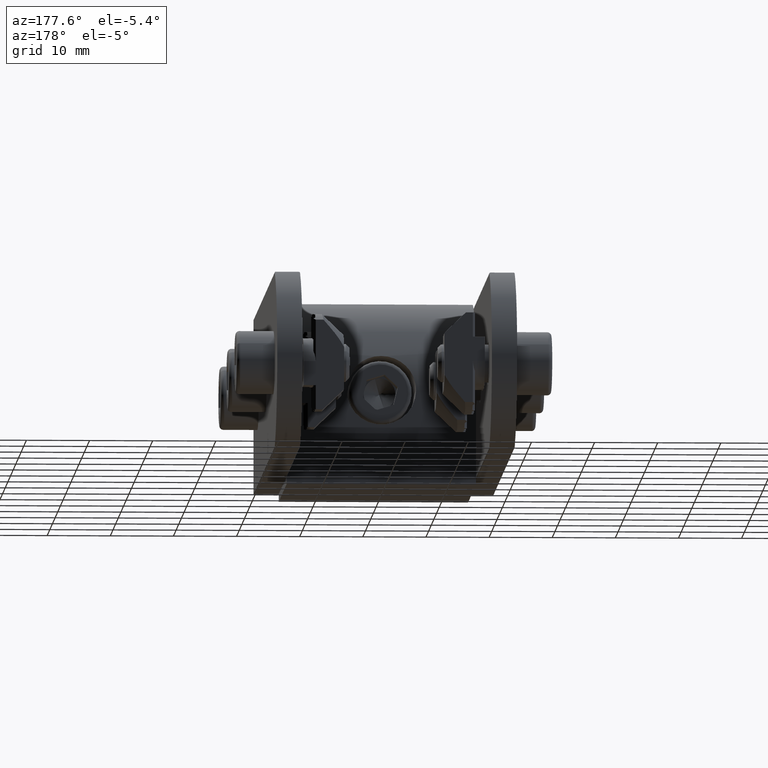
[diagram: clean part render]
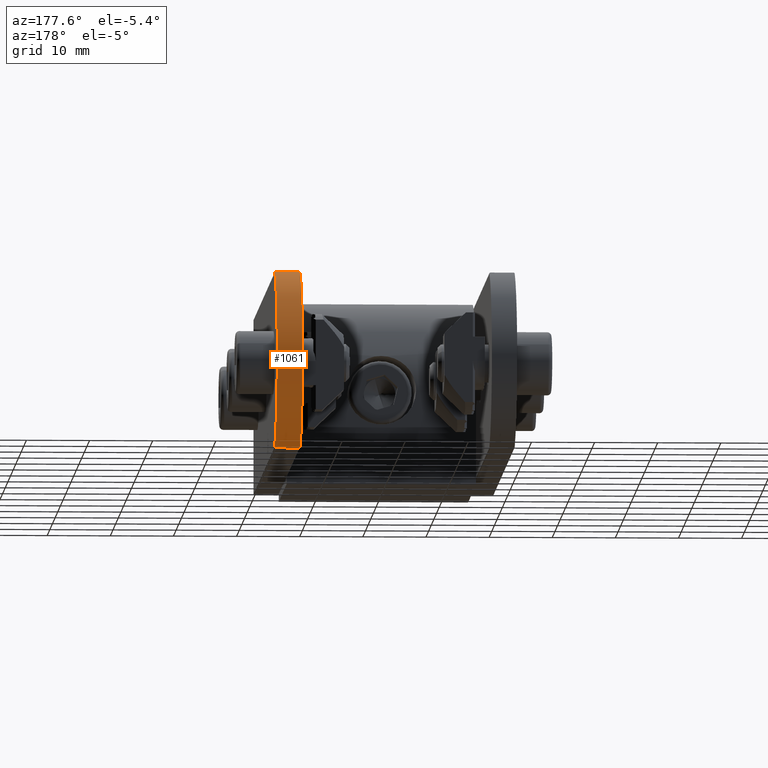
[diagram: same view with one face highlighted and labeled with its STEP entity id]
A machine part, auxiliary view. The second image highlights one B-rep face of the part: STEP entity #1061.
In plain terms, the highlighted cylindrical surface (partial cylindrical patch) has radius 14.8 mm, axis along (-1, 0, -0).
Its self-contained STEP definition (entity closure, byte-faithful):
#22 = CARTESIAN_POINT ( 'NONE',  ( 40.00000000000000711, -14.00000000000001776, 3.799999999999999822 ) ) ;
#95 = ORIENTED_EDGE ( 'NONE', *, *, #3776, .F. ) ;
#105 = B_SPLINE_CURVE_WITH_KNOTS ( 'NONE', 3,
 ( #4828, #2210, #4398, #4335, #3956, #3470, #2239, #3871, #3443, #3047 ),
 .UNSPECIFIED., .F., .F.,
 ( 4, 2, 2, 2, 4 ),
 ( 0.000000000000000000, 8.208523205091546786E-05, 0.0001641704641018309357, 0.0003283409282036424100, 0.0006566818564072671475 ),
 .UNSPECIFIED. ) ;
#136 = CARTESIAN_POINT ( 'NONE',  ( 40.19736532492732550, 13.93086931936776018, 3.952799485552574765 ) ) ;
#157 = CARTESIAN_POINT ( 'NONE',  ( 40.44651398563149769, 13.83928874891829430, -3.335192229813806352E-17 ) ) ;
#190 = ORIENTED_EDGE ( 'NONE', *, *, #496, .T. ) ;
#206 = CARTESIAN_POINT ( 'NONE',  ( 40.05601880040098450, 13.98068339249418557, 0.1120914687767559231 ) ) ;
#237 = CARTESIAN_POINT ( 'NONE',  ( 40.07830587791514887, 13.97292873733607443, 0.09849880051460402353 ) ) ;
#376 = EDGE_CURVE ( 'NONE', #1024, #4433, #105, .T. ) ;
#431 = AXIS2_PLACEMENT_3D ( 'NONE', #3297, #5054, #5207 ) ;
#490 = CIRCLE ( 'NONE', #855, 14.80000000000000782 ) ;
#496 = EDGE_CURVE ( 'NONE', #4433, #2161, #3289, .T. ) ;
#570 = CARTESIAN_POINT ( 'NONE',  ( 40.00000000000002132, 14.00000000000001421, 3.827852753036675271 ) ) ;
#617 = CARTESIAN_POINT ( 'NONE',  ( 40.00000000000002132, 14.00000000000001421, 0.2000000000000000944 ) ) ;
#718 = CARTESIAN_POINT ( 'NONE',  ( 40.54789678284839027, -13.80000000000001670, 0.000000000000000000 ) ) ;
#762 = CARTESIAN_POINT ( 'NONE',  ( 40.00000000000002132, 14.00000000000001421, 3.799999999999999822 ) ) ;
#786 = CARTESIAN_POINT ( 'NONE',  ( 40.54789678284839027, -13.80000000000001670, 4.000000000000000000 ) ) ;
#819 = CARTESIAN_POINT ( 'NONE',  ( 40.07830587791514887, -13.97292873733607799, 3.901501199485398974 ) ) ;
#855 = AXIS2_PLACEMENT_3D ( 'NONE', #3054, #2087, #1280 ) ;
#991 = EDGE_CURVE ( 'NONE', #2728, #1684, #4292, .T. ) ;
#1024 = VERTEX_POINT ( 'NONE', #3781 ) ;
#1061 = ADVANCED_FACE ( 'NONE', ( #3755 ), #2560, .T. ) ;
#1105 = CARTESIAN_POINT ( 'NONE',  ( 40.19766797640946265, 13.93076035739696295, 0.04711413994503050456 ) ) ;
#1116 = DIRECTION ( 'NONE',  ( -0.000000000000000000, -0.000000000000000000, -1.000000000000000000 ) ) ;
#1127 = CARTESIAN_POINT ( 'NONE',  ( 40.01697309694337434, 13.99418439546707482, 0.1483587496073126288 ) ) ;
#1155 = ORIENTED_EDGE ( 'NONE', *, *, #2862, .T. ) ;
#1280 = DIRECTION ( 'NONE',  ( -1.000000000000000000, 0.000000000000000000, 0.000000000000000000 ) ) ;
#1369 = EDGE_LOOP ( 'NONE', ( #1405, #3097, #190, #1155, #5523, #3590, #95, #4989 ) ) ;
#1405 = ORIENTED_EDGE ( 'NONE', *, *, #4975, .T. ) ;
#1503 = DIRECTION ( 'NONE',  ( -1.000000000000000000, 0.000000000000000000, 0.000000000000000000 ) ) ;
#1607 = LINE ( 'NONE', #3274, #5635 ) ;
#1684 = VERTEX_POINT ( 'NONE', #2421 ) ;
#1737 = CARTESIAN_POINT ( 'NONE',  ( 40.44651398563151901, -13.83928874891830851, 4.000000000000000000 ) ) ;
#1740 = VERTEX_POINT ( 'NONE', #786 ) ;
#1891 = CARTESIAN_POINT ( 'NONE',  ( 40.54789678284839738, 13.80000000000001315, 0.000000000000000000 ) ) ;
#1908 = VERTEX_POINT ( 'NONE', #22 ) ;
#2087 = DIRECTION ( 'NONE',  ( 0.000000000000000000, 0.000000000000000000, 1.000000000000000000 ) ) ;
#2161 = VERTEX_POINT ( 'NONE', #4331 ) ;
#2210 = CARTESIAN_POINT ( 'NONE',  ( 40.00000000000000711, -14.00000000000002132, 0.1721472469633191227 ) ) ;
#2239 = CARTESIAN_POINT ( 'NONE',  ( 40.19736532492730419, -13.93086931936775663, 0.04720051444742590085 ) ) ;
#2421 = CARTESIAN_POINT ( 'NONE',  ( 40.54789678284839027, 13.80000000000001670, 4.000000000000000000 ) ) ;
#2560 = CYLINDRICAL_SURFACE ( 'NONE', #431, 14.80000000000000782 ) ;
#2590 = CARTESIAN_POINT ( 'NONE',  ( 40.05601880040097740, -13.98068339249418734, 3.887908531223243092 ) ) ;
#2728 = VERTEX_POINT ( 'NONE', #762 ) ;
#2851 = EDGE_CURVE ( 'NONE', #2728, #3579, #4986, .T. ) ;
#2862 = EDGE_CURVE ( 'NONE', #2161, #3579, #5189, .T. ) ;
#2971 = CARTESIAN_POINT ( 'NONE',  ( 39.99999999999958789, -14.00000000000020961, 3.827760268395957954 ) ) ;
#3032 = CARTESIAN_POINT ( 'NONE',  ( 40.34607774224670607, -13.87692189288952704, 3.989664048990824163 ) ) ;
#3047 = CARTESIAN_POINT ( 'NONE',  ( 40.54789678284839027, -13.80000000000001670, 0.000000000000000000 ) ) ;
#3054 = CARTESIAN_POINT ( 'NONE',  ( 35.20000000000003837, -8.673617379884035472E-16, 4.000000000000000000 ) ) ;
#3097 = ORIENTED_EDGE ( 'NONE', *, *, #376, .T. ) ;
#3125 = CARTESIAN_POINT ( 'NONE',  ( 40.14785719210846793, 13.94851577047690583, 3.936948607002580314 ) ) ;
#3166 = CARTESIAN_POINT ( 'NONE',  ( 35.20000000000003837, -8.673617379884035472E-16, 0.000000000000000000 ) ) ;
#3218 = CARTESIAN_POINT ( 'NONE',  ( 40.00000000000002132, 14.00000000000001421, 3.799999999999999822 ) ) ;
#3274 = CARTESIAN_POINT ( 'NONE',  ( 40.00000000000000711, -14.00000000000001776, 4.000000000000000000 ) ) ;
#3289 = CIRCLE ( 'NONE', #5032, 14.80000000000000782 ) ;
#3297 = CARTESIAN_POINT ( 'NONE',  ( 35.20000000000003837, -8.673617379884035472E-16, 4.000000000000000000 ) ) ;
#3308 = CARTESIAN_POINT ( 'NONE',  ( 40.34607774224672028, 13.87692189288952349, 0.01033595100917644380 ) ) ;
#3398 = CARTESIAN_POINT ( 'NONE',  ( 40.54789678284839027, -13.80000000000001670, 4.000000000000000000 ) ) ;
#3443 = CARTESIAN_POINT ( 'NONE',  ( 40.44656164323399139, -13.83927028022707617, 4.163166935754886660E-16 ) ) ;
#3470 = CARTESIAN_POINT ( 'NONE',  ( 40.14785719210847503, -13.94851577047690405, 0.06305139299741913117 ) ) ;
#3481 = CARTESIAN_POINT ( 'NONE',  ( 40.01697309694336013, -13.99418439546708015, 3.851641250392688232 ) ) ;
#3579 = VERTEX_POINT ( 'NONE', #4531 ) ;
#3581 = CARTESIAN_POINT ( 'NONE',  ( 40.44656164323399139, 13.83927028022707617, 4.000000000000000888 ) ) ;
#3590 = ORIENTED_EDGE ( 'NONE', *, *, #991, .T. ) ;
#3650 = B_SPLINE_CURVE_WITH_KNOTS ( 'NONE', 3,
 ( #3398, #1737, #3032, #3911, #4779, #819, #2590, #3481, #2971, #4344 ),
 .UNSPECIFIED., .F., .F.,
 ( 4, 2, 2, 2, 4 ),
 ( 0.000000000000000000, 0.0003229329951791435238, 0.0004843994927687070187, 0.0005651327415634887661, 0.0006458659903582704594 ),
 .UNSPECIFIED. ) ;
#3676 = CARTESIAN_POINT ( 'NONE',  ( 40.54789678284839027, 13.80000000000001670, 4.000000000000000000 ) ) ;
#3755 = FACE_OUTER_BOUND ( 'NONE', #1369, .T. ) ;
#3776 = EDGE_CURVE ( 'NONE', #1740, #1684, #490, .T. ) ;
#3781 = CARTESIAN_POINT ( 'NONE',  ( 40.00000000000000711, -14.00000000000001776, 0.2000000000000000944 ) ) ;
#3855 = EDGE_CURVE ( 'NONE', #1740, #1908, #3650, .T. ) ;
#3871 = CARTESIAN_POINT ( 'NONE',  ( 40.34606623605579756, -13.87692772304000499, 0.01031612726562136130 ) ) ;
#3911 = CARTESIAN_POINT ( 'NONE',  ( 40.19766797640945555, -13.93076035739696117, 3.952885860054970557 ) ) ;
#3956 = CARTESIAN_POINT ( 'NONE',  ( 40.07876610797154626, -13.97276769333457125, 0.09824397855689051551 ) ) ;
#4072 = CARTESIAN_POINT ( 'NONE',  ( 40.07876610797155337, 13.97276769333456947, 3.901756021443109290 ) ) ;
#4099 = CARTESIAN_POINT ( 'NONE',  ( 40.05604431864335169, 13.98067434880030468, 3.887894211770845043 ) ) ;
#4106 = DIRECTION ( 'NONE',  ( 0.000000000000000000, 0.000000000000000000, 1.000000000000000000 ) ) ;
#4116 = DIRECTION ( 'NONE',  ( -0.000000000000000000, -0.000000000000000000, -1.000000000000000000 ) ) ;
#4292 = B_SPLINE_CURVE_WITH_KNOTS ( 'NONE', 3,
 ( #3218, #570, #4935, #4099, #4072, #3125, #136, #4447, #3581, #3676 ),
 .UNSPECIFIED., .F., .F.,
 ( 4, 2, 2, 2, 4 ),
 ( 0.000000000000000000, 8.208523205090520860E-05, 0.0001641704641018104172, 0.0003283409282036045171, 0.0006566818564071909281 ),
 .UNSPECIFIED. ) ;
#4331 = CARTESIAN_POINT ( 'NONE',  ( 40.54789678284839738, 13.80000000000001315, 0.000000000000000000 ) ) ;
#4335 = CARTESIAN_POINT ( 'NONE',  ( 40.05604431864335169, -13.98067434880030824, 0.1121057882291546653 ) ) ;
#4344 = CARTESIAN_POINT ( 'NONE',  ( 40.00000000000000711, -14.00000000000001776, 3.799999999999999822 ) ) ;
#4398 = CARTESIAN_POINT ( 'NONE',  ( 40.01722998756628868, -13.99409578782149666, 0.1480823928981072068 ) ) ;
#4433 = VERTEX_POINT ( 'NONE', #718 ) ;
#4447 = CARTESIAN_POINT ( 'NONE',  ( 40.34606623605579045, 13.87692772304000144, 3.989683872734379300 ) ) ;
#4456 = VECTOR ( 'NONE', #4116, 1000.000000000000000 ) ;
#4531 = CARTESIAN_POINT ( 'NONE',  ( 40.00000000000002132, 14.00000000000001421, 0.2000000000000000944 ) ) ;
#4558 = CARTESIAN_POINT ( 'NONE',  ( 40.14797425275669696, 13.94847567810727540, 0.06295132330142891308 ) ) ;
#4779 = CARTESIAN_POINT ( 'NONE',  ( 40.14797425275669696, -13.94847567810728250, 3.937048676698572613 ) ) ;
#4828 = CARTESIAN_POINT ( 'NONE',  ( 40.00000000000000711, -14.00000000000001776, 0.2000000000000000944 ) ) ;
#4935 = CARTESIAN_POINT ( 'NONE',  ( 40.01722998756628158, 13.99409578782149310, 3.851917607101892571 ) ) ;
#4956 = CARTESIAN_POINT ( 'NONE',  ( 39.99999999999960920, 14.00000000000020783, 0.1722397316040447934 ) ) ;
#4975 = EDGE_CURVE ( 'NONE', #1908, #1024, #1607, .T. ) ;
#4986 = LINE ( 'NONE', #5042, #4456 ) ;
#4989 = ORIENTED_EDGE ( 'NONE', *, *, #3855, .T. ) ;
#5032 = AXIS2_PLACEMENT_3D ( 'NONE', #3166, #4106, #1503 ) ;
#5042 = CARTESIAN_POINT ( 'NONE',  ( 40.00000000000002132, 14.00000000000001421, 4.000000000000000000 ) ) ;
#5054 = DIRECTION ( 'NONE',  ( -0.000000000000000000, -0.000000000000000000, -1.000000000000000000 ) ) ;
#5189 = B_SPLINE_CURVE_WITH_KNOTS ( 'NONE', 3,
 ( #1891, #157, #3308, #1105, #4558, #237, #206, #1127, #4956, #617 ),
 .UNSPECIFIED., .F., .F.,
 ( 4, 2, 2, 2, 4 ),
 ( 0.000000000000000000, 0.0003229329951791250382, 0.0004843994927686978572, 0.0005651327415634842125, 0.0006458659903582706762 ),
 .UNSPECIFIED. ) ;
#5207 = DIRECTION ( 'NONE',  ( -1.000000000000000000, 0.000000000000000000, 0.000000000000000000 ) ) ;
#5523 = ORIENTED_EDGE ( 'NONE', *, *, #2851, .F. ) ;
#5635 = VECTOR ( 'NONE', #1116, 1000.000000000000000 ) ;